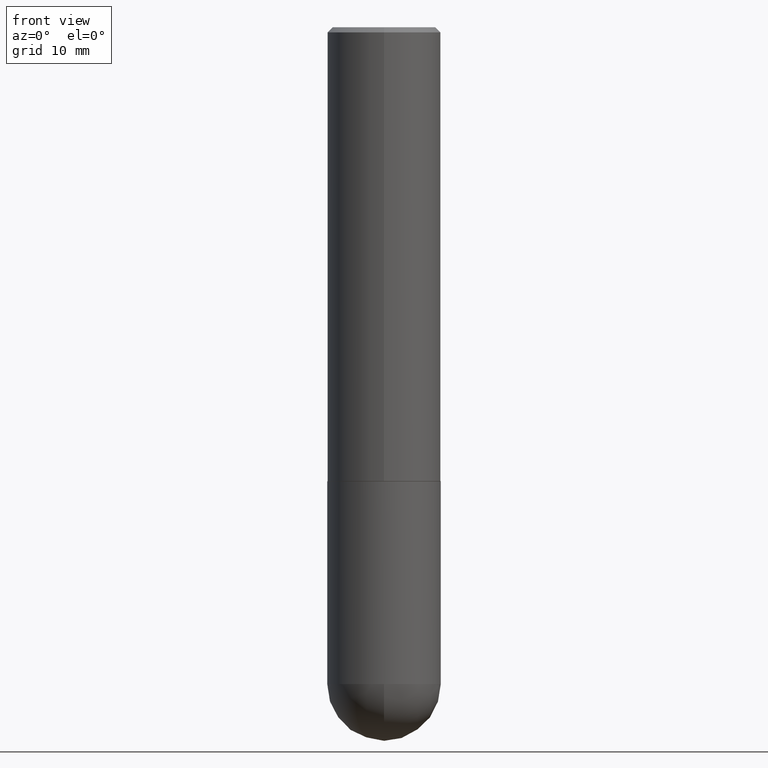
[diagram: clean part render]
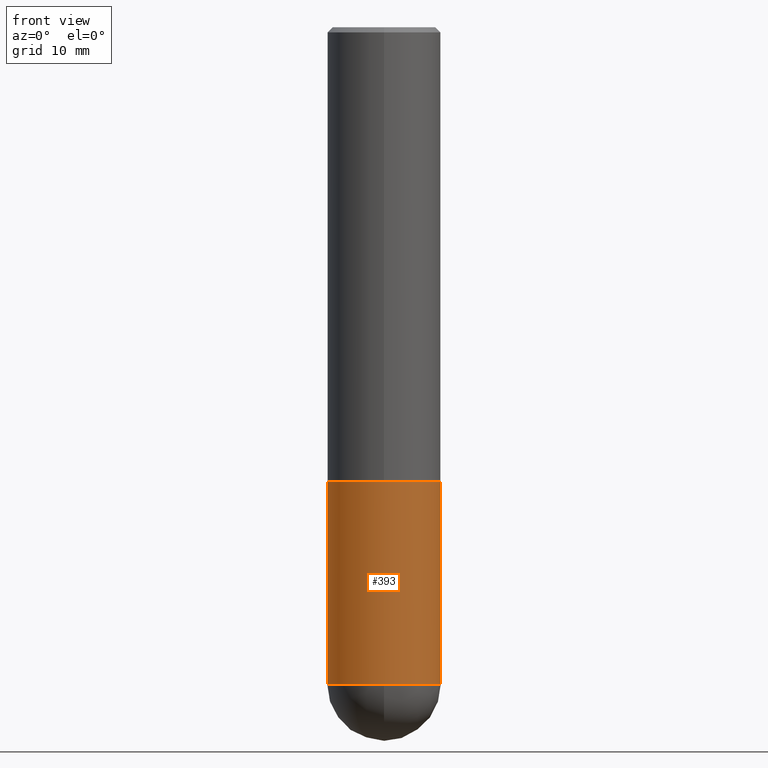
[diagram: same view with one face highlighted and labeled with its STEP entity id]
A machine part, front view. The second image highlights one B-rep face of the part: STEP entity #393.
In plain terms, the highlighted cylindrical surface (partial cylindrical patch) has radius 5.5562 mm, axis along (-0, 0, 1).
Its self-contained STEP definition (entity closure, byte-faithful):
#4 = CARTESIAN_POINT ( 'NONE',  ( -0.2187499999999999445, 1.554312234475218762E-15, -1.076017050993260482E-29 ) ) ;
#8 = AXIS2_PLACEMENT_3D ( 'NONE', #195, #20, #279 ) ;
#9 = DIRECTION ( 'NONE',  ( 1.000000000000000000, -6.982962677686267499E-15, 0.000000000000000000 ) ) ;
#19 = VECTOR ( 'NONE', #24, 39.37007874015748143 ) ;
#20 = DIRECTION ( 'NONE',  ( -2.445468806185136597E-29, 3.491481338843145583E-15, 1.000000000000000000 ) ) ;
#22 = CARTESIAN_POINT ( 'NONE',  ( 0.2187499999999999445, -1.527523085743870449E-15, 1.066663669705360604E-29 ) ) ;
#24 = DIRECTION ( 'NONE',  ( -2.445468806185136877E-29, 3.491481338843145188E-15, 1.000000000000000000 ) ) ;
#36 = CARTESIAN_POINT ( 'NONE',  ( 0.2187499999999999445, -9.001475326704980594E-15, -2.531250000000000000 ) ) ;
#42 = FACE_OUTER_BOUND ( 'NONE', #370, .T. ) ;
#43 = CARTESIAN_POINT ( 'NONE',  ( 4.279570410823988484E-29, -6.110092342975504671E-15, -1.750000000000000000 ) ) ;
#47 = DIRECTION ( 'NONE',  ( 1.000000000000000000, -6.982962677686266711E-15, 4.876176775795935232E-29 ) ) ;
#64 = VERTEX_POINT ( 'NONE', #155 ) ;
#73 = DIRECTION ( 'NONE',  ( -2.445468806185136597E-29, 3.491481338843145583E-15, 1.000000000000000000 ) ) ;
#94 = VERTEX_POINT ( 'NONE', #271 ) ;
#107 = AXIS2_PLACEMENT_3D ( 'NONE', #230, #73, #198 ) ;
#112 = DIRECTION ( 'NONE',  ( -2.445468806185136597E-29, 3.491481338843145583E-15, 1.000000000000000000 ) ) ;
#131 = EDGE_CURVE ( 'NONE', #183, #64, #313, .T. ) ;
#143 = EDGE_CURVE ( 'NONE', #257, #254, #242, .T. ) ;
#146 = CARTESIAN_POINT ( 'NONE',  ( 0.000000000000000000, 0.000000000000000000, 0.000000000000000000 ) ) ;
#155 = CARTESIAN_POINT ( 'NONE',  ( 0.2187500000000000000, -7.637615428719375514E-15, -1.750000000000000000 ) ) ;
#156 = ORIENTED_EDGE ( 'NONE', *, *, #131, .T. ) ;
#161 = CIRCLE ( 'NONE', #107, 0.2187499999999999445 ) ;
#174 = DIRECTION ( 'NONE',  ( -2.445468806185136597E-29, 3.491481338843145583E-15, 1.000000000000000000 ) ) ;
#183 = VERTEX_POINT ( 'NONE', #36 ) ;
#194 = LINE ( 'NONE', #4, #19 ) ;
#195 = CARTESIAN_POINT ( 'NONE',  ( 6.190092915656127011E-29, -8.837812138946710888E-15, -2.531250000000000000 ) ) ;
#198 = DIRECTION ( 'NONE',  ( 1.000000000000000000, -6.982962677686265133E-15, 0.000000000000000000 ) ) ;
#202 = EDGE_CURVE ( 'NONE', #254, #183, #161, .T. ) ;
#228 = ORIENTED_EDGE ( 'NONE', *, *, #143, .T. ) ;
#230 = CARTESIAN_POINT ( 'NONE',  ( 6.190092915656127011E-29, -8.837812138946710888E-15, -2.531250000000000000 ) ) ;
#241 = EDGE_CURVE ( 'NONE', #257, #94, #194, .T. ) ;
#242 = CIRCLE ( 'NONE', #8, 0.2187499999999999445 ) ;
#254 = VERTEX_POINT ( 'NONE', #261 ) ;
#257 = VERTEX_POINT ( 'NONE', #379 ) ;
#261 = CARTESIAN_POINT ( 'NONE',  ( -1.554312234475159203E-15, -0.2187500000000091871, -2.531249999999999556 ) ) ;
#271 = CARTESIAN_POINT ( 'NONE',  ( -0.2187500000000000000, -5.919640006485889806E-15, -1.750000000000000000 ) ) ;
#279 = DIRECTION ( 'NONE',  ( 1.000000000000000000, -6.982962677686265133E-15, 0.000000000000000000 ) ) ;
#280 = ORIENTED_EDGE ( 'NONE', *, *, #202, .T. ) ;
#286 = DIRECTION ( 'NONE',  ( -2.445468806185136877E-29, 3.491481338843145188E-15, 1.000000000000000000 ) ) ;
#313 = LINE ( 'NONE', #22, #333 ) ;
#330 = CYLINDRICAL_SURFACE ( 'NONE', #402, 0.2187499999999999445 ) ;
#333 = VECTOR ( 'NONE', #286, 39.37007874015748143 ) ;
#356 = AXIS2_PLACEMENT_3D ( 'NONE', #43, #174, #9 ) ;
#365 = ORIENTED_EDGE ( 'NONE', *, *, #241, .F. ) ;
#370 = EDGE_LOOP ( 'NONE', ( #365, #228, #280, #156, #404 ) ) ;
#379 = CARTESIAN_POINT ( 'NONE',  ( -0.2187499999999999445, -5.919640006485891384E-15, -2.531250000000000000 ) ) ;
#393 = ADVANCED_FACE ( 'NONE', ( #42 ), #330, .T. ) ;
#396 = CIRCLE ( 'NONE', #356, 0.2187500000000000000 ) ;
#402 = AXIS2_PLACEMENT_3D ( 'NONE', #146, #112, #47 ) ;
#404 = ORIENTED_EDGE ( 'NONE', *, *, #409, .F. ) ;
#409 = EDGE_CURVE ( 'NONE', #94, #64, #396, .T. ) ;